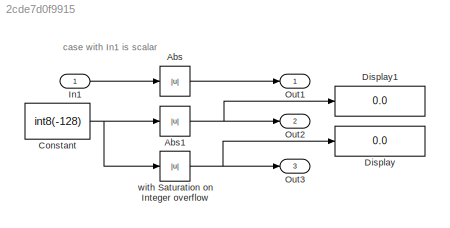
MODEL slx_2cde7d0f9915
KIND model
CONFIG AbsTol = auto
CONFIG EnableMultiTasking = on
CONFIG FixedStep = 0.200000
CONFIG MaxStep = auto
CONFIG MinStep = auto
CONFIG RelTol = 1e-3
CONFIG SampleTimeConstraint = Unconstrained
CONFIG Solver = ode3
CONFIG SolverName = ode3
CONFIG StartTime = 0.0
CONFIG StopTime = 10.0
BLOCK [Abs] Abs
  OutDataTypeStr = uint8
  SaturateOnIntegerOverflow = off
BLOCK [Abs] Abs1
  OutDataTypeStr = int8
  SaturateOnIntegerOverflow = off
BLOCK [Constant] Constant
  Value = int8(-128)
BLOCK [Display] Display
  Decimation = 1
  Ports = [1]
BLOCK [Display] Display1
  Decimation = 1
  Ports = [1]
BLOCK [Inport] In1
  IconDisplay = Port number
BLOCK [Outport] Out1
  IconDisplay = Port number
BLOCK [Outport] Out2
  IconDisplay = Port number
  Port = 2
BLOCK [Outport] Out3
  IconDisplay = Port number
  Port = 3
BLOCK [Abs] with Saturation on Integer overflow
  OutDataTypeStr = int8
ANNOTATION (root): case with In1 is scalar
NET Abs1:1 -> Display1:1, Out2:1
LINE Abs:1 -> Out1:1
NET Constant:1 -> Abs1:1, with Saturation on Integer overflow:1
LINE In1:1 -> Abs:1
NET with Saturation on Integer overflow:1 -> Display:1, Out3:1
note: NET lines group one-source signal fan-out (src -> all destinations, sorted); 1:1 wires keep LINE
